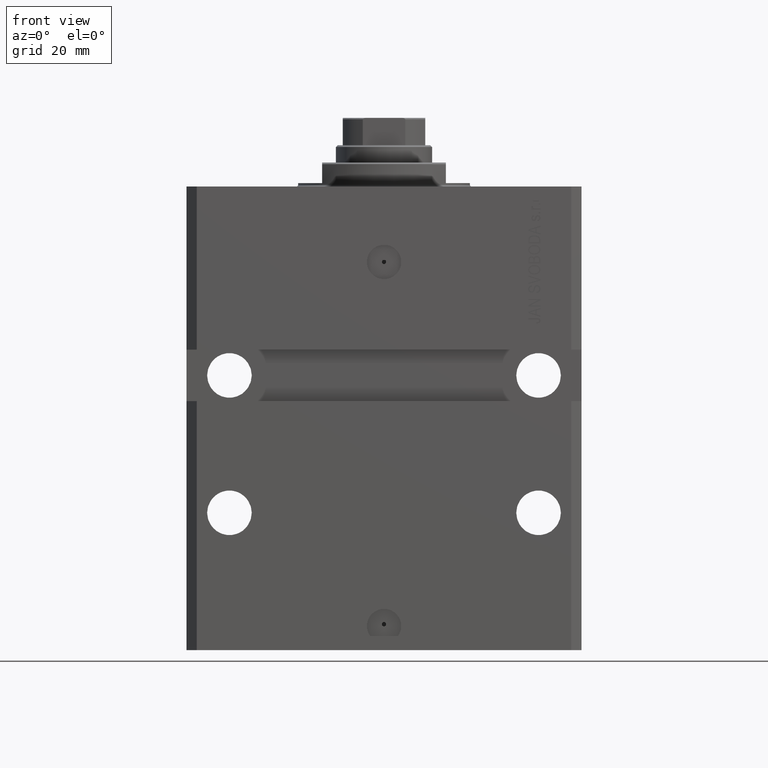
[diagram: clean part render]
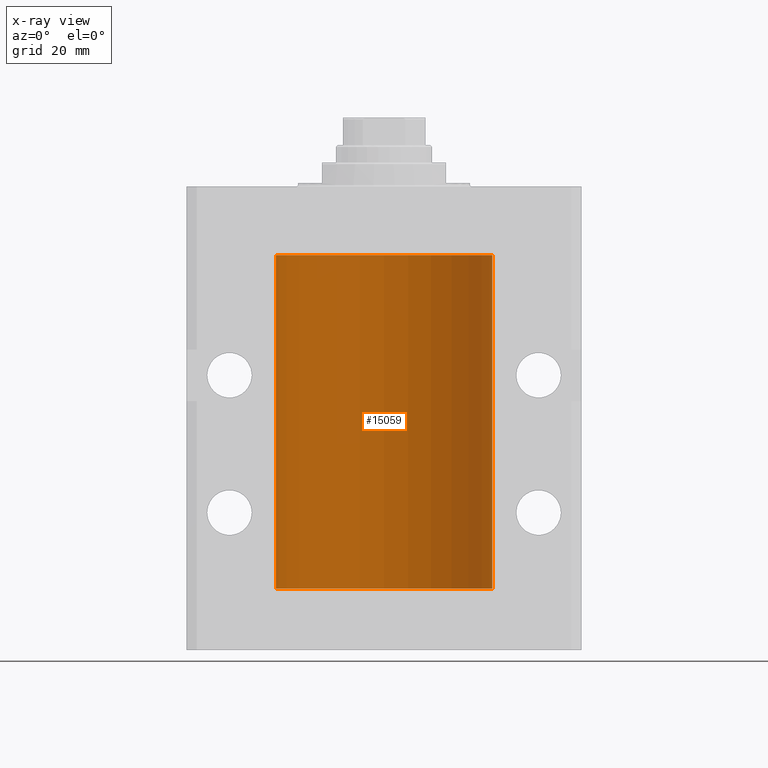
[diagram: x-ray — body ghosted, one internal face saturated and labeled with its STEP entity id]
A machine part, front view, then the same camera in x-ray: the body is ghosted and one INTERNAL B-rep face — a face not visible from any outside direction — is saturated and labeled: STEP entity #15059.
In plain terms, the highlighted cylindrical surface (partial cylindrical patch) has radius 31.5 mm, axis along (0, 0, 1).
Its self-contained STEP definition (entity closure, byte-faithful):
#359 = CARTESIAN_POINT ( 'NONE',  ( -31.49380014137585704, 0.6249421240571523262, -28.83671479190291365 ) ) ;
#497 = AXIS2_PLACEMENT_3D ( 'NONE', #4636, #5101, #19408 ) ;
#565 = VECTOR ( 'NONE', #1099, 1000.000000000000000 ) ;
#1099 = DIRECTION ( 'NONE',  ( -0.000000000000000000, -0.000000000000000000, 1.000000000000000000 ) ) ;
#1637 = CARTESIAN_POINT ( 'NONE',  ( -31.50000000000000000, -2.862469004324082213E-15, -113.3750000000000000 ) ) ;
#2129 = CARTESIAN_POINT ( 'NONE',  ( 31.50000000000000000, 0.000000000000000000, -117.0999999999999943 ) ) ;
#2510 = DIRECTION ( 'NONE',  ( -0.000000000000000000, -0.000000000000000000, 1.000000000000000000 ) ) ;
#2540 = CARTESIAN_POINT ( 'NONE',  ( -31.50000000000006395, 3.480980906124966778E-13, -29.62500000000323297 ) ) ;
#2742 = LINE ( 'NONE', #17066, #14050 ) ;
#2875 = ORIENTED_EDGE ( 'NONE', *, *, #16826, .T. ) ;
#4101 = CARTESIAN_POINT ( 'NONE',  ( -31.49853548231893541, 0.3253851488062241559, -29.55855470525682094 ) ) ;
#4488 = DIRECTION ( 'NONE',  ( -0.000000000000000000, -0.000000000000000000, 1.000000000000000000 ) ) ;
#4636 = CARTESIAN_POINT ( 'NONE',  ( 0.000000000000000000, 0.000000000000000000, -117.0999999999999943 ) ) ;
#4716 = CARTESIAN_POINT ( 'NONE',  ( 0.000000000000000000, 0.000000000000000000, -117.0999999999999943 ) ) ;
#5101 = DIRECTION ( 'NONE',  ( 0.000000000000000000, 0.000000000000000000, 1.000000000000000000 ) ) ;
#6302 = CARTESIAN_POINT ( 'NONE',  ( -31.49851563474691218, 0.3150284575672402942, -28.45401791159624239 ) ) ;
#6329 = VECTOR ( 'NONE', #8732, 1000.000000000000000 ) ;
#7373 = CARTESIAN_POINT ( 'NONE',  ( -31.50000000000000000, -2.862469004324082213E-15, -113.3750000000000000 ) ) ;
#7392 = VERTEX_POINT ( 'NONE', #10858 ) ;
#7810 = EDGE_CURVE ( 'NONE', #32018, #39491, #14720, .T. ) ;
#8014 = FACE_OUTER_BOUND ( 'NONE', #14035, .T. ) ;
#8167 = DIRECTION ( 'NONE',  ( 0.000000000000000000, 0.000000000000000000, 1.000000000000000000 ) ) ;
#8453 = CARTESIAN_POINT ( 'NONE',  ( -31.49851563474690508, 0.3150284575672371301, -113.4540179115962246 ) ) ;
#8732 = DIRECTION ( 'NONE',  ( -0.000000000000000000, -0.000000000000000000, 1.000000000000000000 ) ) ;
#8923 = CARTESIAN_POINT ( 'NONE',  ( -31.49966591610109390, 0.1636376958180598418, -113.3912618999583657 ) ) ;
#9191 = ORIENTED_EDGE ( 'NONE', *, *, #33165, .F. ) ;
#10858 = CARTESIAN_POINT ( 'NONE',  ( 31.50000000000000000, 0.000000000000000000, -20.00000000000000355 ) ) ;
#12008 = CYLINDRICAL_SURFACE ( 'NONE', #35477, 31.50000000000000000 ) ;
#12207 = CARTESIAN_POINT ( 'NONE',  ( -31.50000000000006395, 3.480981129463732167E-13, -114.6250000000032401 ) ) ;
#12848 = DIRECTION ( 'NONE',  ( -0.000000000000000000, -0.000000000000000000, 1.000000000000000000 ) ) ;
#13074 = CARTESIAN_POINT ( 'NONE',  ( -31.50000000000000000, 3.857637417314161900E-15, -117.0999999999999943 ) ) ;
#13335 = AXIS2_PLACEMENT_3D ( 'NONE', #40334, #8167, #14525 ) ;
#13533 = CARTESIAN_POINT ( 'NONE',  ( -31.50000000000000000, 3.857637417314161900E-15, -20.00000000000000355 ) ) ;
#13576 = CARTESIAN_POINT ( 'NONE',  ( -31.49379784581975983, 0.6250577973157598333, -29.16284184848847971 ) ) ;
#14035 = EDGE_LOOP ( 'NONE', ( #27053, #31531, #27281, #15487, #23749, #41970, #9191, #2875 ) ) ;
#14050 = VECTOR ( 'NONE', #2510, 1000.000000000000000 ) ;
#14317 = EDGE_CURVE ( 'NONE', #16993, #22591, #15903, .T. ) ;
#14525 = DIRECTION ( 'NONE',  ( 1.000000000000000000, 0.000000000000000000, 0.000000000000000000 ) ) ;
#14720 = LINE ( 'NONE', #29040, #565 ) ;
#14917 = VERTEX_POINT ( 'NONE', #32444 ) ;
#15059 = ADVANCED_FACE ( 'NONE', ( #8014 ), #12008, .F. ) ;
#15487 = ORIENTED_EDGE ( 'NONE', *, *, #31288, .T. ) ;
#15903 = LINE ( 'NONE', #13074, #35439 ) ;
#15948 = CARTESIAN_POINT ( 'NONE',  ( -31.49379784581975272, 0.6250577973157633860, -114.1628418484884548 ) ) ;
#16826 = EDGE_CURVE ( 'NONE', #28215, #39491, #19562, .T. ) ;
#16993 = VERTEX_POINT ( 'NONE', #21768 ) ;
#17066 = CARTESIAN_POINT ( 'NONE',  ( -31.50000000000000000, 3.857637417314161900E-15, -117.0999999999999943 ) ) ;
#17096 = CARTESIAN_POINT ( 'NONE',  ( -31.49770767031179730, 0.3843648832734374854, -28.50046081259655040 ) ) ;
#19004 = CARTESIAN_POINT ( 'NONE',  ( -31.49770767031180441, 0.3843648832734344878, -113.5004608125965717 ) ) ;
#19231 = CARTESIAN_POINT ( 'NONE',  ( -31.49380014137585704, 0.6249421240571484404, -113.8367147919028923 ) ) ;
#19408 = DIRECTION ( 'NONE',  ( 1.000000000000000000, 0.000000000000000000, 0.000000000000000000 ) ) ;
#19562 = B_SPLINE_CURVE_WITH_KNOTS ( 'NONE', 3,
 ( #1637, #22519, #8923, #8453, #19004, #37092, #19231, #15948, #34254, #30276, #23435, #12207 ),
 .UNSPECIFIED., .F., .F.,
 ( 4, 2, 2, 2, 2, 4 ),
 ( 3.062184955773984539E-18, 0.0002442604562134841409, 0.0004885209124269652460, 0.0009770418248538977491, 0.001465562737280830252, 0.001954083649707762538 ),
 .UNSPECIFIED. ) ;
#19960 = LINE ( 'NONE', #2129, #6329 ) ;
#20610 = CARTESIAN_POINT ( 'NONE',  ( -31.49526081842315151, 0.5587119163470772865, -29.32511513093050937 ) ) ;
#21768 = CARTESIAN_POINT ( 'NONE',  ( -31.50000000000000000, 6.759071642563815395E-15, -28.37500000000000355 ) ) ;
#22280 = EDGE_CURVE ( 'NONE', #14917, #7392, #19960, .T. ) ;
#22519 = CARTESIAN_POINT ( 'NONE',  ( -31.49999999999999289, 0.08259258789479095864, -113.3749999999999858 ) ) ;
#22591 = VERTEX_POINT ( 'NONE', #13533 ) ;
#23240 = DIRECTION ( 'NONE',  ( 1.000000000000000000, 0.000000000000000000, 0.000000000000000000 ) ) ;
#23435 = CARTESIAN_POINT ( 'NONE',  ( -31.50000000000000000, 0.1631661150515248127, -114.6249999999998721 ) ) ;
#23749 = ORIENTED_EDGE ( 'NONE', *, *, #14317, .F. ) ;
#24357 = CARTESIAN_POINT ( 'NONE',  ( -31.50000000000000000, 6.759071642563815395E-15, -28.37500000000000355 ) ) ;
#27053 = ORIENTED_EDGE ( 'NONE', *, *, #7810, .F. ) ;
#27281 = ORIENTED_EDGE ( 'NONE', *, *, #22280, .T. ) ;
#28215 = VERTEX_POINT ( 'NONE', #7373 ) ;
#29040 = CARTESIAN_POINT ( 'NONE',  ( -31.50000000000000000, 3.857637417314161900E-15, -117.0999999999999943 ) ) ;
#30052 = CARTESIAN_POINT ( 'NONE',  ( -31.50000000000000000, 3.857637417314161900E-15, -117.0999999999999943 ) ) ;
#30276 = CARTESIAN_POINT ( 'NONE',  ( -31.49853548231895672, 0.3253851488062226571, -114.5585547052568671 ) ) ;
#30412 = B_SPLINE_CURVE_WITH_KNOTS ( 'NONE', 3,
 ( #24357, #45751, #38472, #6302, #17096, #34702, #359, #13576, #20610, #4101, #34937, #2540 ),
 .UNSPECIFIED., .F., .F.,
 ( 4, 2, 2, 2, 2, 4 ),
 ( 5.360009401240440187E-19, 0.0002442604562134703173, 0.0004885209124269400925, 0.0009770418248538795345, 0.001465562737280818977, 0.001954083649707758635 ),
 .UNSPECIFIED. ) ;
#31103 = VERTEX_POINT ( 'NONE', #37333 ) ;
#31288 = EDGE_CURVE ( 'NONE', #7392, #22591, #44082, .T. ) ;
#31422 = EDGE_CURVE ( 'NONE', #14917, #32018, #35083, .T. ) ;
#31531 = ORIENTED_EDGE ( 'NONE', *, *, #31422, .F. ) ;
#32018 = VERTEX_POINT ( 'NONE', #30052 ) ;
#32444 = CARTESIAN_POINT ( 'NONE',  ( 31.50000000000000000, 0.000000000000000000, -117.0999999999999943 ) ) ;
#33165 = EDGE_CURVE ( 'NONE', #28215, #31103, #2742, .T. ) ;
#34254 = CARTESIAN_POINT ( 'NONE',  ( -31.49526081842315151, 0.5587119163470788408, -114.3251151309305413 ) ) ;
#34702 = CARTESIAN_POINT ( 'NONE',  ( -31.49528028230855270, 0.5573323339569594692, -28.67349008819320844 ) ) ;
#34937 = CARTESIAN_POINT ( 'NONE',  ( -31.50000000000000000, 0.1631661150515231473, -29.62499999999986144 ) ) ;
#35083 = CIRCLE ( 'NONE', #497, 31.50000000000000000 ) ;
#35439 = VECTOR ( 'NONE', #12848, 1000.000000000000000 ) ;
#35477 = AXIS2_PLACEMENT_3D ( 'NONE', #4716, #4488, #23240 ) ;
#36696 = EDGE_CURVE ( 'NONE', #16993, #31103, #30412, .T. ) ;
#37092 = CARTESIAN_POINT ( 'NONE',  ( -31.49528028230855270, 0.5573323339569572488, -113.6734900881931907 ) ) ;
#37333 = CARTESIAN_POINT ( 'NONE',  ( -31.50000000000006395, 3.480980906124966778E-13, -29.62500000000323297 ) ) ;
#38472 = CARTESIAN_POINT ( 'NONE',  ( -31.49966591610109390, 0.1636376958180632002, -28.39126189995839411 ) ) ;
#39491 = VERTEX_POINT ( 'NONE', #41627 ) ;
#40334 = CARTESIAN_POINT ( 'NONE',  ( 0.000000000000000000, 0.000000000000000000, -20.00000000000000355 ) ) ;
#41627 = CARTESIAN_POINT ( 'NONE',  ( -31.50000000000006395, 3.480981129463732167E-13, -114.6250000000032401 ) ) ;
#41970 = ORIENTED_EDGE ( 'NONE', *, *, #36696, .T. ) ;
#44082 = CIRCLE ( 'NONE', #13335, 31.50000000000000000 ) ;
#45751 = CARTESIAN_POINT ( 'NONE',  ( -31.49999999999999289, 0.08259258789479796692, -28.37500000000000711 ) ) ;